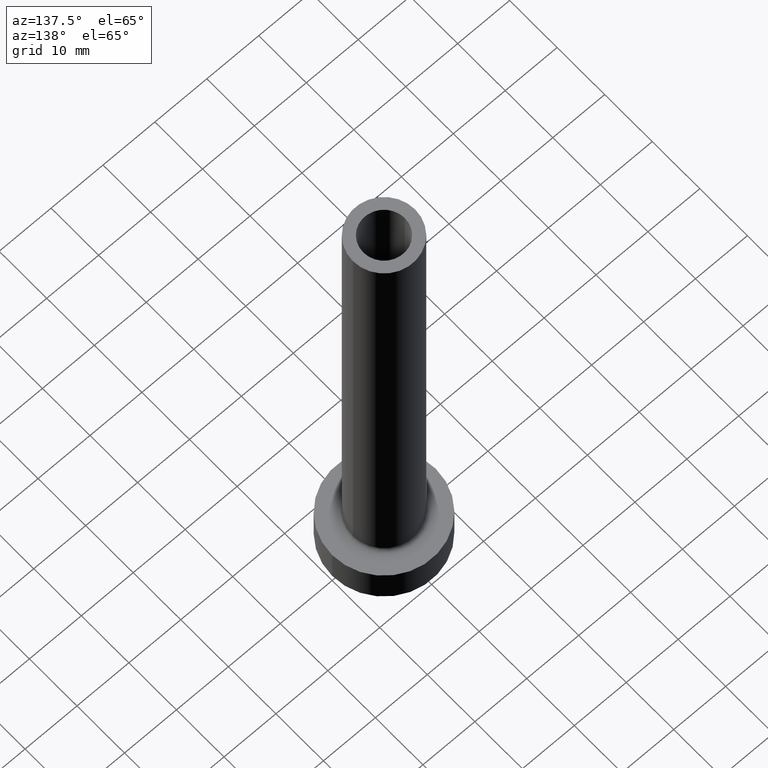
[diagram: clean part render]
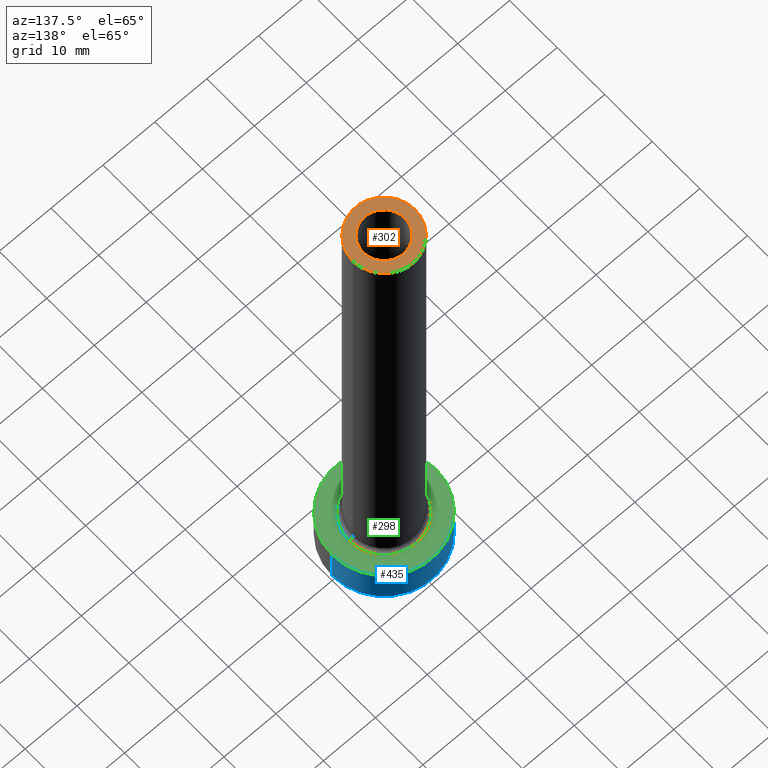
[diagram: same view with three faces highlighted in distinct colors, each labeled with its STEP entity id]
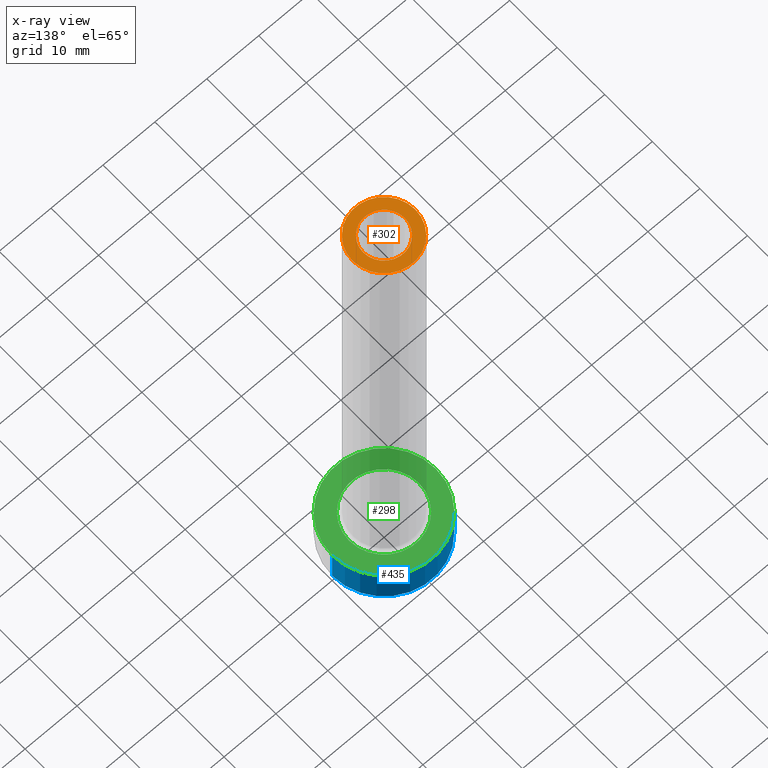
[diagram: x-ray of the same camera — body ghosted, the three highlighted faces saturated]
A machine part, auxiliary view with three faces highlighted in distinct colors.
The next image is the same camera in x-ray (body ghosted, the three faces saturated) — at least one of them is partly hidden behind the body in this view.
Their STEP definitions:

[orange] entity #302 — the highlighted planar face has unit normal (0, 0, 1).
#18 = DIRECTION ( 'NONE',  ( 0.000000000000000000, 0.000000000000000000, 1.000000000000000000 ) ) ;
#21 = CARTESIAN_POINT ( 'NONE',  ( 0.000000000000000000, 0.000000000000000000, 100.0000000000000000 ) ) ;
#31 = EDGE_CURVE ( 'NONE', #139, #153, #425, .T. ) ;
#39 = CARTESIAN_POINT ( 'NONE',  ( -4.000000000000000000, 0.000000000000000000, 100.0000000000000000 ) ) ;
#43 = DIRECTION ( 'NONE',  ( 1.000000000000000000, 0.000000000000000000, 0.000000000000000000 ) ) ;
#54 = DIRECTION ( 'NONE',  ( 1.000000000000000000, 0.000000000000000000, 0.000000000000000000 ) ) ;
#59 = ORIENTED_EDGE ( 'NONE', *, *, #212, .F. ) ;
#61 = ORIENTED_EDGE ( 'NONE', *, *, #31, .T. ) ;
#70 = DIRECTION ( 'NONE',  ( 0.000000000000000000, 0.000000000000000000, 1.000000000000000000 ) ) ;
#81 = CARTESIAN_POINT ( 'NONE',  ( 0.000000000000000000, 0.000000000000000000, 100.0000000000000000 ) ) ;
#98 = VERTEX_POINT ( 'NONE', #39 ) ;
#101 = CARTESIAN_POINT ( 'NONE',  ( 0.000000000000000000, 0.000000000000000000, 100.0000000000000000 ) ) ;
#107 = PLANE ( 'NONE',  #237 ) ;
#125 = DIRECTION ( 'NONE',  ( 1.000000000000000000, 0.000000000000000000, 0.000000000000000000 ) ) ;
#134 = CARTESIAN_POINT ( 'NONE',  ( 4.000000000000000000, 4.898587196589411843E-16, 100.0000000000000000 ) ) ;
#139 = VERTEX_POINT ( 'NONE', #334 ) ;
#146 = FACE_OUTER_BOUND ( 'NONE', #283, .T. ) ;
#153 = VERTEX_POINT ( 'NONE', #438 ) ;
#179 = AXIS2_PLACEMENT_3D ( 'NONE', #81, #18, #43 ) ;
#190 = CIRCLE ( 'NONE', #223, 6.000000000000000888 ) ;
#192 = CARTESIAN_POINT ( 'NONE',  ( 0.000000000000000000, 0.000000000000000000, 100.0000000000000000 ) ) ;
#204 = VERTEX_POINT ( 'NONE', #134 ) ;
#212 = EDGE_CURVE ( 'NONE', #204, #98, #375, .T. ) ;
#223 = AXIS2_PLACEMENT_3D ( 'NONE', #101, #342, #125 ) ;
#237 = AXIS2_PLACEMENT_3D ( 'NONE', #391, #320, #386 ) ;
#240 = DIRECTION ( 'NONE',  ( 0.000000000000000000, 0.000000000000000000, 1.000000000000000000 ) ) ;
#282 = EDGE_CURVE ( 'NONE', #98, #204, #400, .T. ) ;
#283 = EDGE_LOOP ( 'NONE', ( #61, #325 ) ) ;
#285 = AXIS2_PLACEMENT_3D ( 'NONE', #192, #70, #430 ) ;
#302 = ADVANCED_FACE ( 'NONE', ( #324, #146 ), #107, .T. ) ;
#320 = DIRECTION ( 'NONE',  ( 0.000000000000000000, 0.000000000000000000, 1.000000000000000000 ) ) ;
#324 = FACE_BOUND ( 'NONE', #396, .T. ) ;
#325 = ORIENTED_EDGE ( 'NONE', *, *, #347, .T. ) ;
#334 = CARTESIAN_POINT ( 'NONE',  ( -6.000000000000000888, 0.000000000000000000, 100.0000000000000000 ) ) ;
#342 = DIRECTION ( 'NONE',  ( 0.000000000000000000, 0.000000000000000000, 1.000000000000000000 ) ) ;
#347 = EDGE_CURVE ( 'NONE', #153, #139, #190, .T. ) ;
#375 = CIRCLE ( 'NONE', #179, 4.000000000000000000 ) ;
#383 = ORIENTED_EDGE ( 'NONE', *, *, #282, .F. ) ;
#386 = DIRECTION ( 'NONE',  ( 1.000000000000000000, 0.000000000000000000, -0.000000000000000000 ) ) ;
#391 = CARTESIAN_POINT ( 'NONE',  ( 0.000000000000000000, 0.000000000000000000, 100.0000000000000000 ) ) ;
#396 = EDGE_LOOP ( 'NONE', ( #383, #59 ) ) ;
#400 = CIRCLE ( 'NONE', #427, 4.000000000000000000 ) ;
#425 = CIRCLE ( 'NONE', #285, 6.000000000000000888 ) ;
#427 = AXIS2_PLACEMENT_3D ( 'NONE', #21, #240, #54 ) ;
#430 = DIRECTION ( 'NONE',  ( 1.000000000000000000, 0.000000000000000000, 0.000000000000000000 ) ) ;
#438 = CARTESIAN_POINT ( 'NONE',  ( 6.000000000000000888, 7.347880794884119736E-16, 100.0000000000000000 ) ) ;

[blue] entity #435 — the highlighted cylindrical surface (partial cylindrical patch) has radius 10 mm, axis along (-0, -0, -1).
#7 = LINE ( 'NONE', #49, #86 ) ;
#13 = CARTESIAN_POINT ( 'NONE',  ( 0.000000000000000000, 0.000000000000000000, 7.000000000000000000 ) ) ;
#19 = EDGE_CURVE ( 'NONE', #180, #247, #112, .T. ) ;
#27 = ORIENTED_EDGE ( 'NONE', *, *, #19, .F. ) ;
#34 = CARTESIAN_POINT ( 'NONE',  ( -10.00000000000000000, 0.000000000000000000, 7.000000000000000000 ) ) ;
#36 = DIRECTION ( 'NONE',  ( -0.000000000000000000, -0.000000000000000000, -1.000000000000000000 ) ) ;
#38 = CARTESIAN_POINT ( 'NONE',  ( 0.000000000000000000, 0.000000000000000000, 0.000000000000000000 ) ) ;
#44 = CYLINDRICAL_SURFACE ( 'NONE', #362, 10.00000000000000000 ) ;
#49 = CARTESIAN_POINT ( 'NONE',  ( 10.00000000000000000, 1.224646799147353256E-15, 7.000000000000000000 ) ) ;
#71 = AXIS2_PLACEMENT_3D ( 'NONE', #308, #343, #230 ) ;
#86 = VECTOR ( 'NONE', #300, 1000.000000000000000 ) ;
#92 = CARTESIAN_POINT ( 'NONE',  ( 10.00000000000000000, 1.224646799147353256E-15, 0.000000000000000000 ) ) ;
#112 = LINE ( 'NONE', #34, #354 ) ;
#138 = EDGE_CURVE ( 'NONE', #456, #247, #314, .T. ) ;
#159 = DIRECTION ( 'NONE',  ( 1.000000000000000000, 0.000000000000000000, 0.000000000000000000 ) ) ;
#168 = CARTESIAN_POINT ( 'NONE',  ( -10.00000000000000000, 0.000000000000000000, 0.000000000000000000 ) ) ;
#171 = EDGE_LOOP ( 'NONE', ( #279, #449, #209, #27 ) ) ;
#178 = EDGE_CURVE ( 'NONE', #409, #180, #222, .T. ) ;
#180 = VERTEX_POINT ( 'NONE', #194 ) ;
#186 = DIRECTION ( 'NONE',  ( 0.000000000000000000, 0.000000000000000000, 1.000000000000000000 ) ) ;
#194 = CARTESIAN_POINT ( 'NONE',  ( -10.00000000000000000, 0.000000000000000000, 7.000000000000000000 ) ) ;
#209 = ORIENTED_EDGE ( 'NONE', *, *, #138, .T. ) ;
#222 = CIRCLE ( 'NONE', #71, 10.00000000000000000 ) ;
#225 = EDGE_CURVE ( 'NONE', #409, #456, #7, .T. ) ;
#230 = DIRECTION ( 'NONE',  ( 1.000000000000000000, 0.000000000000000000, 0.000000000000000000 ) ) ;
#234 = DIRECTION ( 'NONE',  ( -1.000000000000000000, 0.000000000000000000, 0.000000000000000000 ) ) ;
#247 = VERTEX_POINT ( 'NONE', #168 ) ;
#279 = ORIENTED_EDGE ( 'NONE', *, *, #178, .F. ) ;
#300 = DIRECTION ( 'NONE',  ( -0.000000000000000000, -0.000000000000000000, -1.000000000000000000 ) ) ;
#308 = CARTESIAN_POINT ( 'NONE',  ( 0.000000000000000000, 0.000000000000000000, 7.000000000000000000 ) ) ;
#314 = CIRCLE ( 'NONE', #335, 10.00000000000000000 ) ;
#335 = AXIS2_PLACEMENT_3D ( 'NONE', #38, #186, #159 ) ;
#343 = DIRECTION ( 'NONE',  ( 0.000000000000000000, 0.000000000000000000, 1.000000000000000000 ) ) ;
#354 = VECTOR ( 'NONE', #36, 1000.000000000000000 ) ;
#362 = AXIS2_PLACEMENT_3D ( 'NONE', #13, #439, #234 ) ;
#377 = CARTESIAN_POINT ( 'NONE',  ( 10.00000000000000000, 1.224646799147353256E-15, 7.000000000000000000 ) ) ;
#409 = VERTEX_POINT ( 'NONE', #377 ) ;
#435 = ADVANCED_FACE ( 'NONE', ( #445 ), #44, .T. ) ;
#439 = DIRECTION ( 'NONE',  ( -0.000000000000000000, -0.000000000000000000, -1.000000000000000000 ) ) ;
#445 = FACE_OUTER_BOUND ( 'NONE', #171, .T. ) ;
#449 = ORIENTED_EDGE ( 'NONE', *, *, #225, .T. ) ;
#456 = VERTEX_POINT ( 'NONE', #92 ) ;

[green] entity #298 — the highlighted planar face has unit normal (0, 0, 1).
#9 = CARTESIAN_POINT ( 'NONE',  ( -6.700000000000001066, 8.205133554287267548E-16, 6.999999999999999112 ) ) ;
#28 = AXIS2_PLACEMENT_3D ( 'NONE', #322, #280, #214 ) ;
#51 = ORIENTED_EDGE ( 'NONE', *, *, #106, .T. ) ;
#71 = AXIS2_PLACEMENT_3D ( 'NONE', #308, #343, #230 ) ;
#77 = EDGE_CURVE ( 'NONE', #180, #409, #352, .T. ) ;
#106 = EDGE_CURVE ( 'NONE', #424, #388, #460, .T. ) ;
#126 = PLANE ( 'NONE',  #414 ) ;
#127 = EDGE_LOOP ( 'NONE', ( #268, #323 ) ) ;
#129 = CARTESIAN_POINT ( 'NONE',  ( 0.000000000000000000, 0.000000000000000000, 7.000000000000000000 ) ) ;
#131 = AXIS2_PLACEMENT_3D ( 'NONE', #157, #429, #259 ) ;
#156 = DIRECTION ( 'NONE',  ( 1.000000000000000000, 0.000000000000000000, 0.000000000000000000 ) ) ;
#157 = CARTESIAN_POINT ( 'NONE',  ( 0.000000000000000000, 0.000000000000000000, 7.000000000000000000 ) ) ;
#165 = FACE_BOUND ( 'NONE', #211, .T. ) ;
#178 = EDGE_CURVE ( 'NONE', #409, #180, #222, .T. ) ;
#180 = VERTEX_POINT ( 'NONE', #194 ) ;
#194 = CARTESIAN_POINT ( 'NONE',  ( -10.00000000000000000, 0.000000000000000000, 7.000000000000000000 ) ) ;
#200 = DIRECTION ( 'NONE',  ( 1.000000000000000000, 0.000000000000000000, -0.000000000000000000 ) ) ;
#211 = EDGE_LOOP ( 'NONE', ( #51, #305 ) ) ;
#214 = DIRECTION ( 'NONE',  ( 1.000000000000000000, 0.000000000000000000, 0.000000000000000000 ) ) ;
#222 = CIRCLE ( 'NONE', #71, 10.00000000000000000 ) ;
#230 = DIRECTION ( 'NONE',  ( 1.000000000000000000, 0.000000000000000000, 0.000000000000000000 ) ) ;
#256 = DIRECTION ( 'NONE',  ( 0.000000000000000000, 0.000000000000000000, 1.000000000000000000 ) ) ;
#257 = CIRCLE ( 'NONE', #28, 6.700000000000001066 ) ;
#259 = DIRECTION ( 'NONE',  ( 1.000000000000000000, 0.000000000000000000, 0.000000000000000000 ) ) ;
#261 = CARTESIAN_POINT ( 'NONE',  ( 6.700000000000001066, 0.000000000000000000, 6.999999999999999112 ) ) ;
#268 = ORIENTED_EDGE ( 'NONE', *, *, #77, .T. ) ;
#269 = DIRECTION ( 'NONE',  ( 0.000000000000000000, 0.000000000000000000, 1.000000000000000000 ) ) ;
#280 = DIRECTION ( 'NONE',  ( -0.000000000000000000, -0.000000000000000000, -1.000000000000000000 ) ) ;
#292 = AXIS2_PLACEMENT_3D ( 'NONE', #461, #256, #156 ) ;
#298 = ADVANCED_FACE ( 'NONE', ( #165, #442 ), #126, .T. ) ;
#305 = ORIENTED_EDGE ( 'NONE', *, *, #309, .T. ) ;
#308 = CARTESIAN_POINT ( 'NONE',  ( 0.000000000000000000, 0.000000000000000000, 7.000000000000000000 ) ) ;
#309 = EDGE_CURVE ( 'NONE', #388, #424, #257, .T. ) ;
#322 = CARTESIAN_POINT ( 'NONE',  ( 0.000000000000000000, 0.000000000000000000, 7.000000000000000000 ) ) ;
#323 = ORIENTED_EDGE ( 'NONE', *, *, #178, .T. ) ;
#343 = DIRECTION ( 'NONE',  ( 0.000000000000000000, 0.000000000000000000, 1.000000000000000000 ) ) ;
#352 = CIRCLE ( 'NONE', #292, 10.00000000000000000 ) ;
#377 = CARTESIAN_POINT ( 'NONE',  ( 10.00000000000000000, 1.224646799147353256E-15, 7.000000000000000000 ) ) ;
#388 = VERTEX_POINT ( 'NONE', #9 ) ;
#409 = VERTEX_POINT ( 'NONE', #377 ) ;
#414 = AXIS2_PLACEMENT_3D ( 'NONE', #129, #269, #200 ) ;
#424 = VERTEX_POINT ( 'NONE', #261 ) ;
#429 = DIRECTION ( 'NONE',  ( -0.000000000000000000, -0.000000000000000000, -1.000000000000000000 ) ) ;
#442 = FACE_OUTER_BOUND ( 'NONE', #127, .T. ) ;
#460 = CIRCLE ( 'NONE', #131, 6.700000000000001066 ) ;
#461 = CARTESIAN_POINT ( 'NONE',  ( 0.000000000000000000, 0.000000000000000000, 7.000000000000000000 ) ) ;